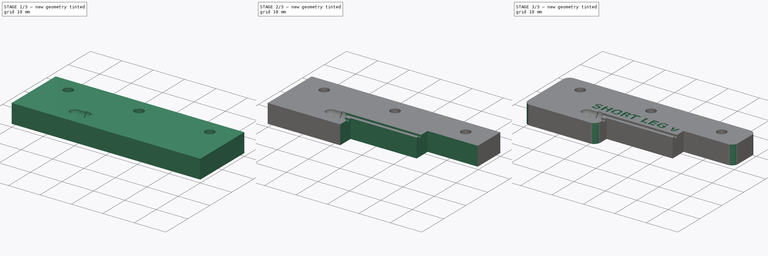
[diagram: build sequence overview — one tinted view per stage of 3, left to right]
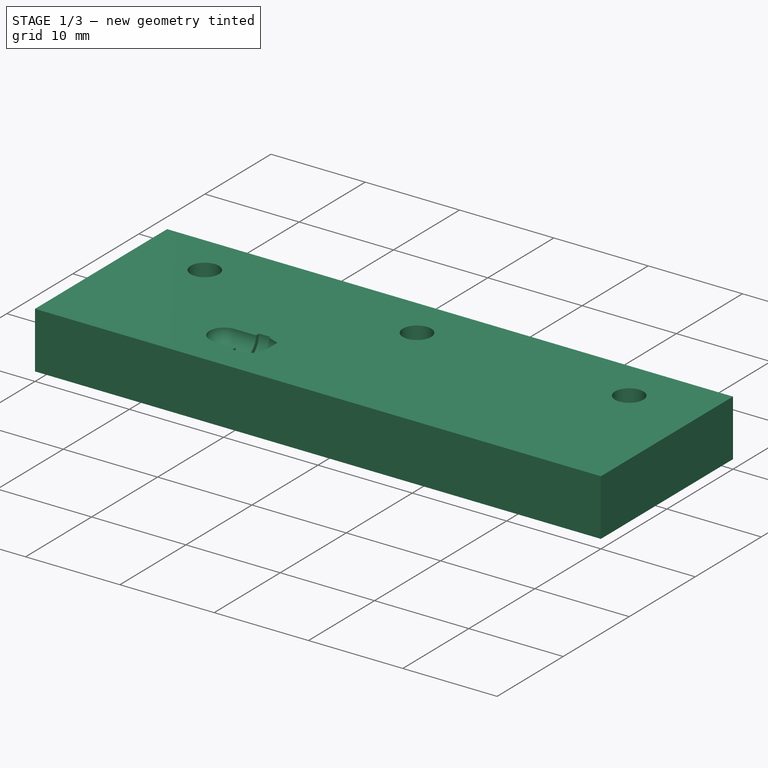
[diagram: stage 1 of 3 — iso view after this stage's code; geometry added in this stage tinted green]
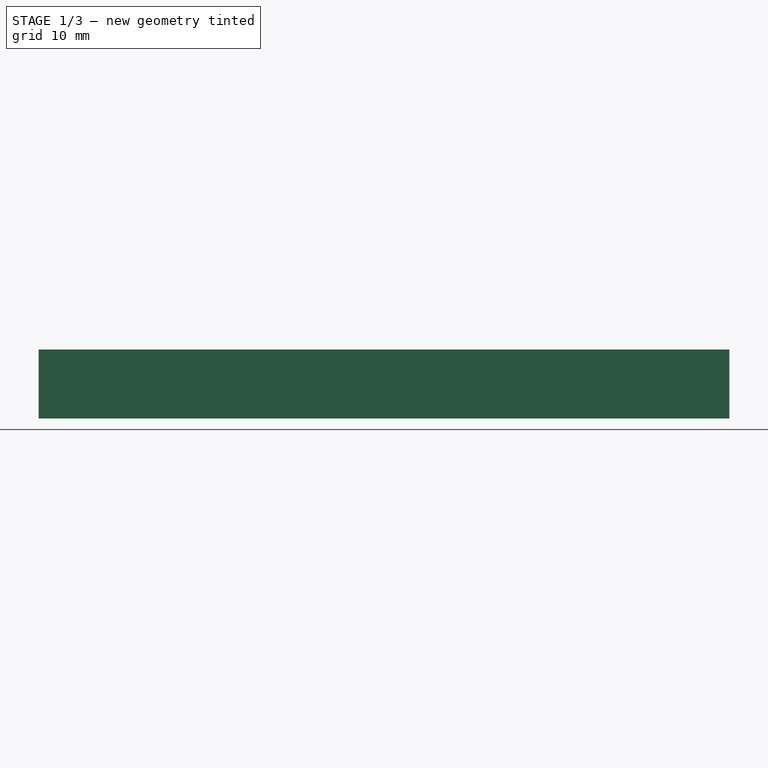
[diagram: stage 1 of 3 — front view after this stage's code; geometry added in this stage tinted green]
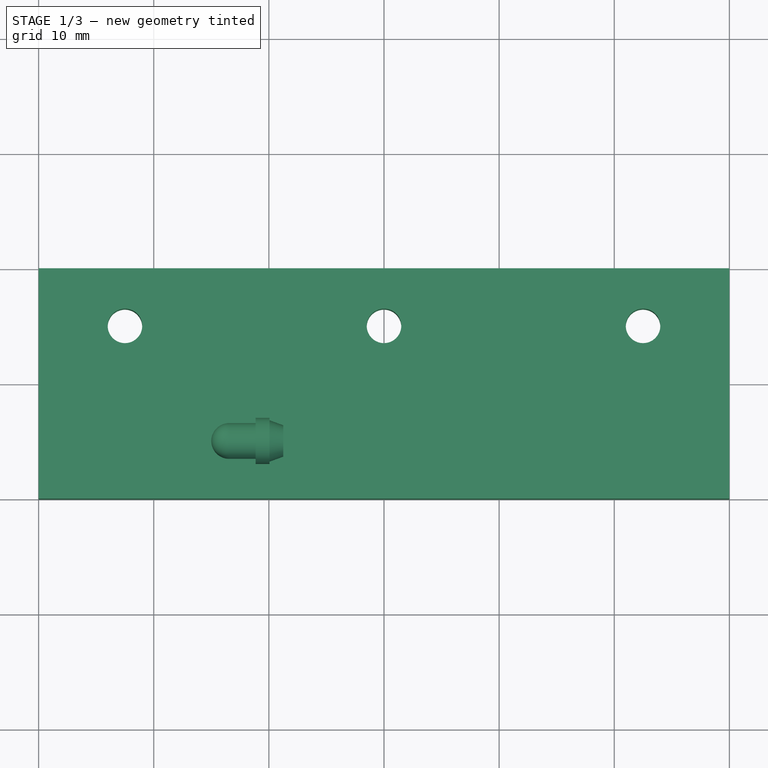
[diagram: stage 1 of 3 — top view after this stage's code; geometry added in this stage tinted green]
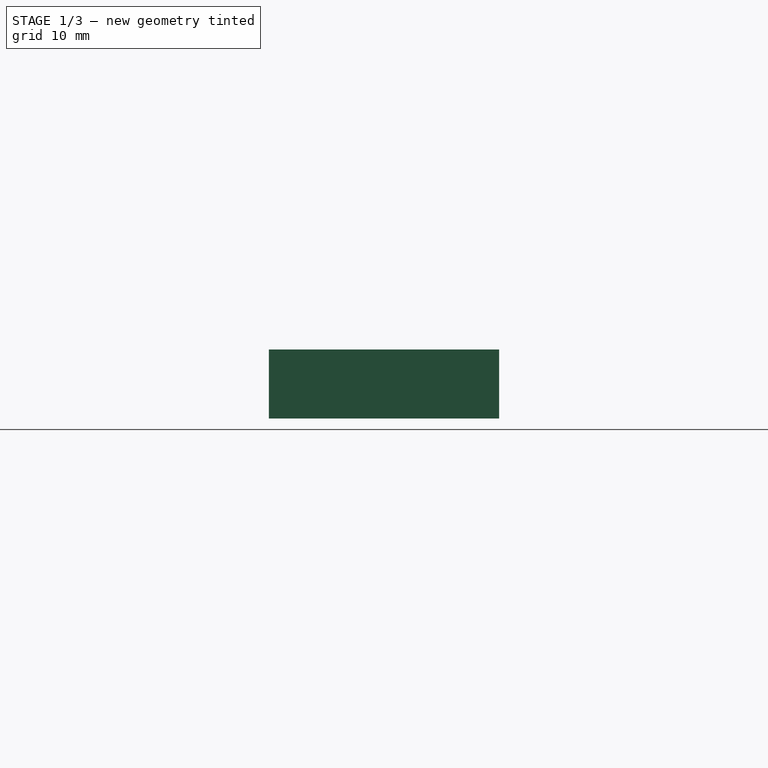
[diagram: stage 1 of 3 — right view after this stage's code; geometry added in this stage tinted green]
FCSTD DOCUMENT  (FreeCAD 1.1R20260414 (Git shallow))
Label: led-jig
License: All rights reserved
LicenseURL: https://en.wikipedia.org/wiki/All_rights_reserved
objects: Sketcher::SketchObject×5, PartDesign::Pocket×3, App::Point×1, PartDesign::Pad×1, PartDesign::Groove×1, Part::Part2DObjectPython×1, PartDesign::Fillet×1, PartDesign::Body×1
note: 30 computed .brp shape members not serialized (recipe doc carries the construction recipe); baked Part::Feature solids carry a one-line shape summary decoded from their .brp

FEATURE [App::Point] Origin001
  Role = Origin
FEATURE [Sketcher::SketchObject] Sketch
  ArcFitTolerance = 1e-06
  AttachmentSupport = -> [Origin]
  ExternalTypes = [0]
  FullyConstrained = true
  MakeInternals = false
  MapMode = 5
  _ExternalGeoVersion = 1
  sketch-geometry (7):
    g0: LineSegment StartX=0 StartY=0 StartZ=0 EndX=60 EndY=0 EndZ=0
    g1: LineSegment StartX=60 StartY=0 StartZ=0 EndX=60 EndY=20 EndZ=0
    g2: LineSegment StartX=60 StartY=20 StartZ=0 EndX=0 EndY=20 EndZ=0
    g3: LineSegment StartX=0 StartY=20 StartZ=0 EndX=0 EndY=0 EndZ=0
    g4: Circle CenterX=52.5 CenterY=15 CenterZ=0 NormalX=0 NormalY=0 NormalZ=1 AngleXU=0 Radius=1.5
    g5: Circle CenterX=30 CenterY=15 CenterZ=0 NormalX=0 NormalY=0 NormalZ=1 AngleXU=0 Radius=1.5
    g6: Circle CenterX=7.5 CenterY=15 CenterZ=0 NormalX=0 NormalY=0 NormalZ=1 AngleXU=0 Radius=1.5
  constraints (20):
    c: Coincident(g0,g1)
    c: Coincident(g1,g2)
    c: Coincident(g2,g3)
    c: Coincident(g3,g0)
    c: Horizontal(g0)
    c: Horizontal(g2)
    c: Vertical(g1)
    c: Vertical(g3)
    c: Distance(g1,g3) = 60
    c: Distance(g0,g2) = 20
    c: Coincident(g0,g-1)
    c: Diameter(g4) = 3
    c: DistanceX(g6,g5) = 22.5
    c: DistanceX(g5,g4) = 22.5
    c: DistanceX(g2,g6) = 7.5
    c: DistanceY(g6,g2) = 5
    c: Horizontal(g6,g5)
    c: Horizontal(g6,g4)
    c: Equal(g6,g5)
    c: Equal(g5,g4)
FEATURE [PartDesign::Pad] Pad
  Direction = (0,0,1)
  Length = 6
  Length2 = 10
  Profile = -> Sketch
  ReferenceAxis = -> Sketch [N_Axis]
  Refine = true
  SideType = 0
  Suppressed = false
  Type = 0
  Type2 = 0
FEATURE [Sketcher::SketchObject] Sketch001
  ArcFitTolerance = 1e-06
  AttachmentSupport = -> [Pad]
  ExternalTypes = [0]
  FullyConstrained = false
  MakeInternals = false
  MapMode = 5
  Placement = pos=(0,0,6) rot=(0,0,1;0rad)
  _ExternalGeoVersion = 1
  sketch-geometry (9):
    g0: LineSegment [constr] StartX=15 StartY=5 StartZ=0 EndX=24.2807 EndY=5 EndZ=0
    g1: ArcOfCircle CenterX=16.55 CenterY=5 CenterZ=0 NormalX=0 NormalY=0 NormalZ=1 AngleXU=0 Radius=1.55 StartAngle=1.5708 EndAngle=3.14159
    g2: LineSegment StartX=16.55 StartY=6.55 StartZ=0 EndX=18.85 EndY=6.55 EndZ=0
    g3: LineSegment StartX=18.85 StartY=6.55 StartZ=0 EndX=18.85 EndY=7 EndZ=0
    g4: LineSegment StartX=18.85 StartY=7 StartZ=0 EndX=20.05 EndY=7 EndZ=0
    g5: LineSegment StartX=15 StartY=5 StartZ=0 EndX=21.25 EndY=5 EndZ=0
    g6: LineSegment StartX=20.05 StartY=7 StartZ=0 EndX=20.05 EndY=6.8 EndZ=0
    g7: LineSegment StartX=21.25 StartY=6.36324 StartZ=0 EndX=21.25 EndY=5 EndZ=0
    g8: LineSegment StartX=20.05 StartY=6.8 StartZ=0 EndX=21.25 EndY=6.36324 EndZ=0
  constraints (27):
    c: Horizontal(g0)
    c: PointOnObject(g1,g0)
    c: Vertical(g1,g1)
    c: Radius(g1) = 1.55
    c: Distance(g2) = 2.3
    c: Coincident(g2,g1)
    c: Horizontal(g2)
    c: Coincident(g3,g2)
    c: Vertical(g3)
    c: Coincident(g4,g3)
    c: Horizontal(g4)
    c: Coincident(g5,g1)
    c: DistanceX(g4,g4) = 1.2
    c: Coincident(g0,g1)
    c: DistanceX(g-1,g0) = 15
    c: DistanceY(g-1,g0) = 5
    c: PointOnObject(g5,g0)
    c: DistanceY(g5,g3) = 2
    c: Coincident(g6,g4)
    c: Vertical(g6)
    c: DistanceY(g6,g6) = 0.2
    c: Coincident(g7,g5)
    c: Vertical(g7)
    c: Coincident(g8,g6)
    c: Coincident(g8,g7)
    c: Angle(g8,g7) = 1.91986
    c: DistanceX(g4,g7) = 1.2
FEATURE [PartDesign::Groove] Groove
  Angle = 360
  Angle2 = 0
  Axis = (9.2807,0,0)
  Base = (15,5,6)
  BaseFeature = -> Pad
  Profile = -> Sketch001
  ReferenceAxis = -> Sketch001 [Axis]
  Refine = true
  Reversed = true
  Suppressed = false
  Type = 0
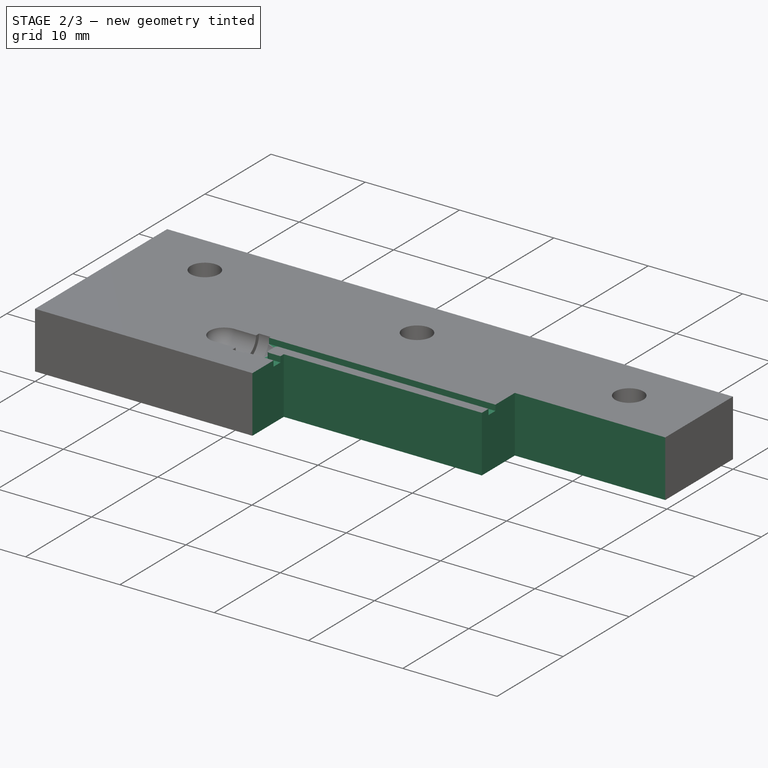
[diagram: stage 2 of 3 — iso view after this stage's code; geometry added in this stage tinted green]
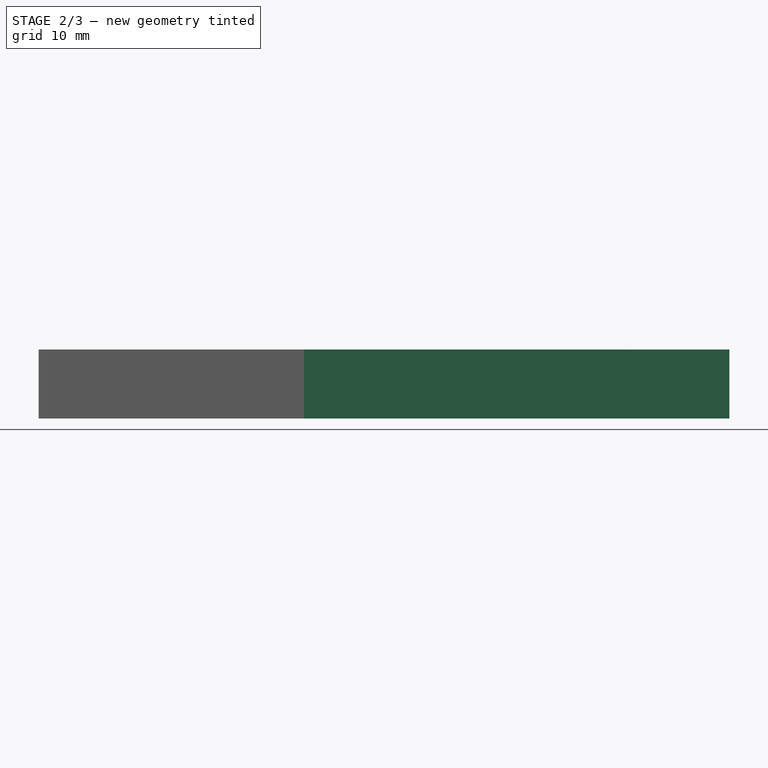
[diagram: stage 2 of 3 — front view after this stage's code; geometry added in this stage tinted green]
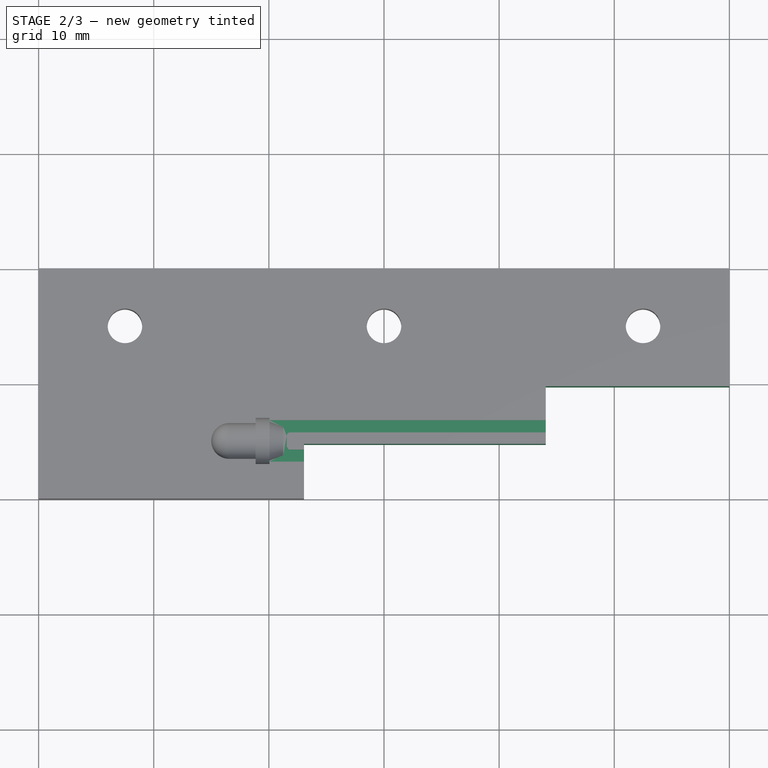
[diagram: stage 2 of 3 — top view after this stage's code; geometry added in this stage tinted green]
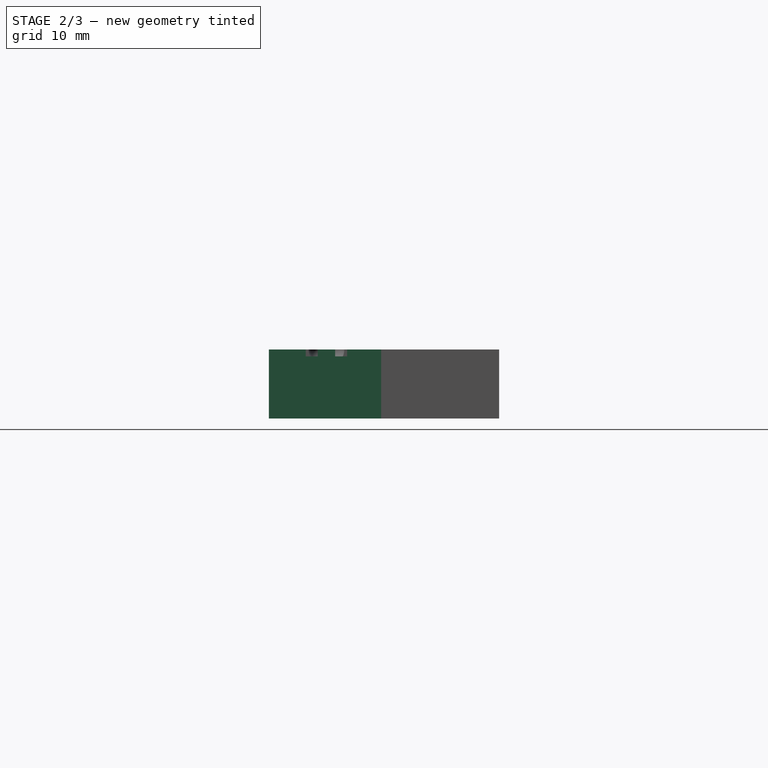
[diagram: stage 2 of 3 — right view after this stage's code; geometry added in this stage tinted green]
FEATURE [Sketcher::SketchObject] Sketch002
  ArcFitTolerance = 1e-06
  AttachmentSupport = -> [Groove]
  ExternalGeometry = -> [Groove]
  ExternalTypes = [0]
  FullyConstrained = true
  MakeInternals = false
  MapMode = 5
  Placement = pos=(0,0,6) rot=(0,0,1;0rad)
  _ExternalGeoVersion = 1
  sketch-geometry (13):
    g0: LineSegment StartX=48.05 StartY=5.75 StartZ=0 EndX=48.05 EndY=6.8 EndZ=0
    g1: LineSegment StartX=48.05 StartY=6.8 StartZ=0 EndX=20.05 EndY=6.8 EndZ=0
    g2: LineSegment StartX=20.05 StartY=6.8 StartZ=0 EndX=20.05 EndY=3.2 EndZ=0
    g3: LineSegment StartX=20.05 StartY=3.2 StartZ=0 EndX=50.05 EndY=3.2 EndZ=0
    g4: LineSegment StartX=50.05 StartY=3.2 StartZ=0 EndX=50.05 EndY=4.25 EndZ=0
    g5: LineSegment StartX=50.05 StartY=4.25 StartZ=0 EndX=21.85 EndY=4.25 EndZ=0
    g6: LineSegment StartX=21.55 StartY=4.55 StartZ=0 EndX=21.55 EndY=5.45 EndZ=0
    g7: LineSegment StartX=21.85 StartY=5.75 StartZ=0 EndX=48.05 EndY=5.75 EndZ=0
    g8: GeomPoint [constr] X=20.05 Y=5 Z=0
    g9: ArcOfCircle CenterX=21.85 CenterY=5.45 CenterZ=0 NormalX=0 NormalY=0 NormalZ=1 AngleXU=0 Radius=0.3 StartAngle=1.5708 EndAngle=3.14159
    g10: GeomPoint [constr] X=21.55 Y=5.75 Z=0
    g11: ArcOfCircle CenterX=21.85 CenterY=4.55 CenterZ=0 NormalX=0 NormalY=0 NormalZ=1 AngleXU=0 Radius=0.3 StartAngle=3.14159 EndAngle=4.71239
    g12: GeomPoint [constr] X=21.55 Y=4.25 Z=0
  constraints (32):
    c: Coincident(g0,g1)
    c: Vertical(g0)
    c: Horizontal(g1)
    c: PointOnObject(g1,g-3)
    c: Coincident(g2,g3)
    c: Coincident(g3,g4)
    c: Vertical(g4)
    c: Horizontal(g3)
    c: Coincident(g5,g4)
    c: Horizontal(g5)
    c: Vertical(g6)
    c: Coincident(g7,g0)
    c: Horizontal(g7)
    c: Coincident(g2,g1)
    c: DistanceX(g3,g3) = 30
    c: DistanceX(g1,g1) = 28
    c: DistanceX(g1,g10) = 1.5
    c: DistanceY(g12,g10) = 1.5
    c: Symmetric(g2,g2,g8)
    c: Symmetric(g-3,g-3,g8)
    c: Equal(g0,g4)
    c: DistanceY(g2,g2) = 3.6
    c: PointOnObject(g10,g6)
    c: PointOnObject(g10,g7)
    c: Tangent(g6,g9) = 1.5708
    c: Tangent(g7,g9) = 1.5708
    c: PointOnObject(g12,g5)
    c: PointOnObject(g12,g6)
    c: Tangent(g5,g11) = 1.5708
    c: Tangent(g6,g11) = 1.5708
    c: Radius(g11) = 0.3
    c: Radius(g9) = 0.3
FEATURE [PartDesign::Pocket] Pocket
  BaseFeature = -> Groove
  Direction = (0,0,-1)
  Length = 0.6
  Length2 = 5
  Profile = -> Sketch002
  ReferenceAxis = -> Sketch002 [N_Axis]
  Refine = true
  SideType = 0
  Suppressed = false
  Type = 0
  Type2 = 0
FEATURE [Sketcher::SketchObject] Sketch003
  ArcFitTolerance = 1e-06
  AttachmentSupport = -> [Pocket]
  ExternalGeometry = -> [Pocket]
  ExternalTypes = [0,0,0]
  FullyConstrained = true
  MakeInternals = false
  MapMode = 5
  Placement = pos=(0,0,6) rot=(0,0,1;0rad)
  _ExternalGeoVersion = 1
  sketch-geometry (6):
    g0: LineSegment StartX=23.05 StartY=0 StartZ=0 EndX=23.05 EndY=4.75 EndZ=0
    g1: LineSegment StartX=23.05 StartY=4.75 StartZ=0 EndX=44.05 EndY=4.75 EndZ=0
    g2: LineSegment StartX=44.05 StartY=4.75 StartZ=0 EndX=44.05 EndY=9.75 EndZ=0
    g3: LineSegment StartX=44.05 StartY=9.75 StartZ=0 EndX=60 EndY=9.75 EndZ=0
    g4: LineSegment StartX=60 StartY=9.75 StartZ=0 EndX=60 EndY=0 EndZ=0
    g5: LineSegment StartX=60 StartY=0 StartZ=0 EndX=23.05 EndY=0 EndZ=0
  constraints (17):
    c: PointOnObject(g0,g-1)
    c: Vertical(g0)
    c: Coincident(g1,g0)
    c: Horizontal(g1)
    c: Coincident(g2,g1)
    c: Vertical(g2)
    c: Coincident(g3,g2)
    c: PointOnObject(g3,g-3)
    c: Horizontal(g3)
    c: Coincident(g4,g3)
    c: Coincident(g4,g-3)
    c: Coincident(g5,g4)
    c: Coincident(g5,g0)
    c: DistanceX(g-4,g0) = 3
    c: DistanceX(g2,g-5) = 4
    c: DistanceY(g1,g-5) = 1
    c: DistanceY(g1,g2) = 5
FEATURE [PartDesign::Pocket] Pocket001
  BaseFeature = -> Pocket
  Direction = (0,0,-1)
  Length = 20
  Length2 = 5
  Profile = -> Sketch003
  ReferenceAxis = -> Sketch003 [N_Axis]
  Refine = true
  SideType = 0
  Suppressed = false
  Type = 0
  Type2 = 0
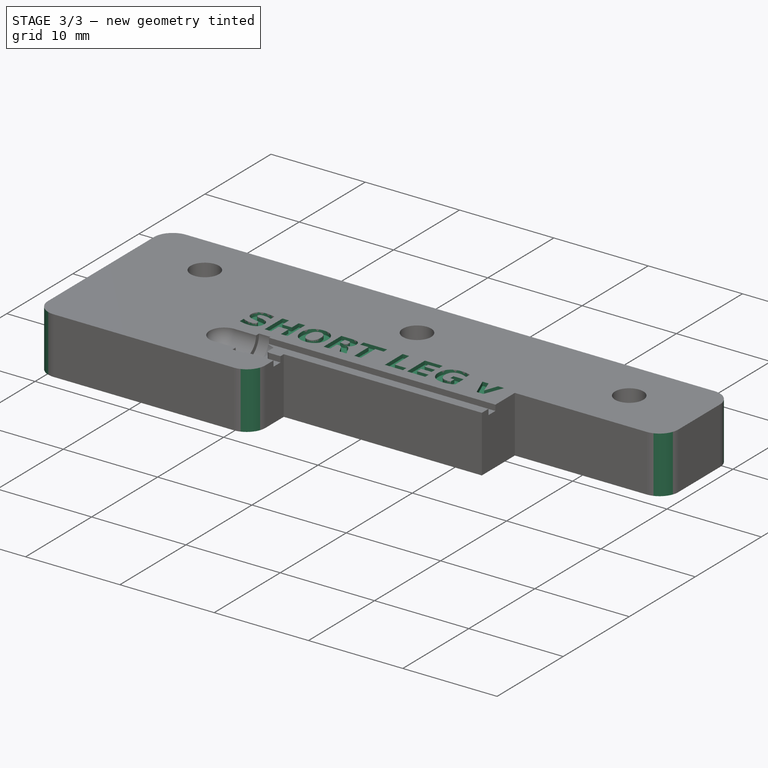
[diagram: stage 3 of 3 — iso view after this stage's code; geometry added in this stage tinted green]
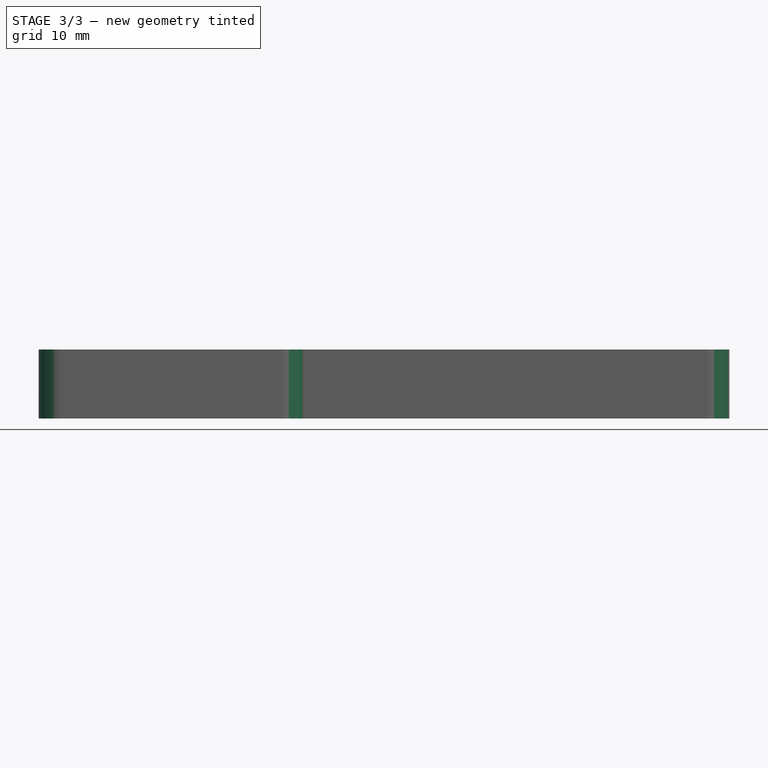
[diagram: stage 3 of 3 — front view after this stage's code; geometry added in this stage tinted green]
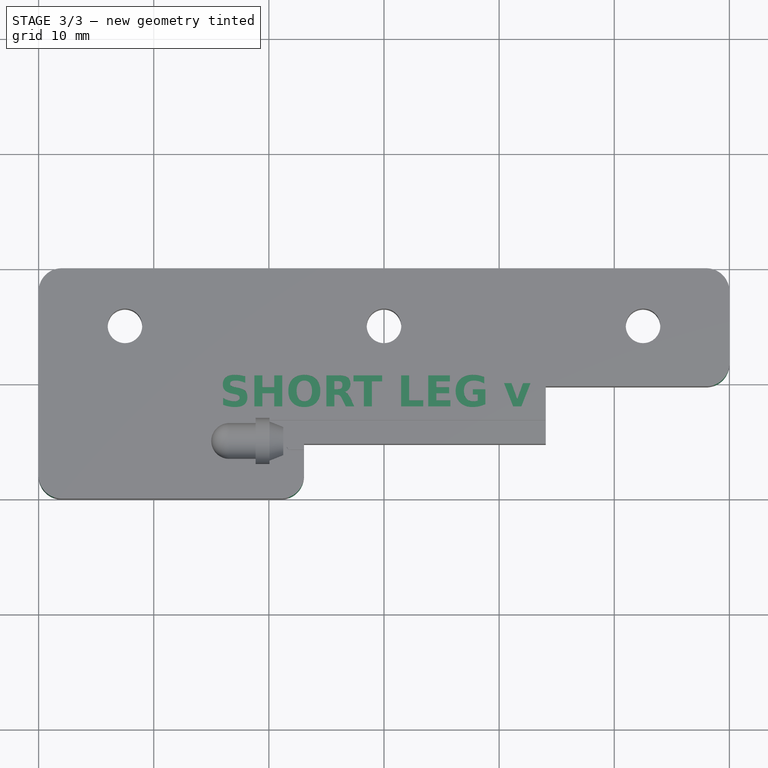
[diagram: stage 3 of 3 — top view after this stage's code; geometry added in this stage tinted green]
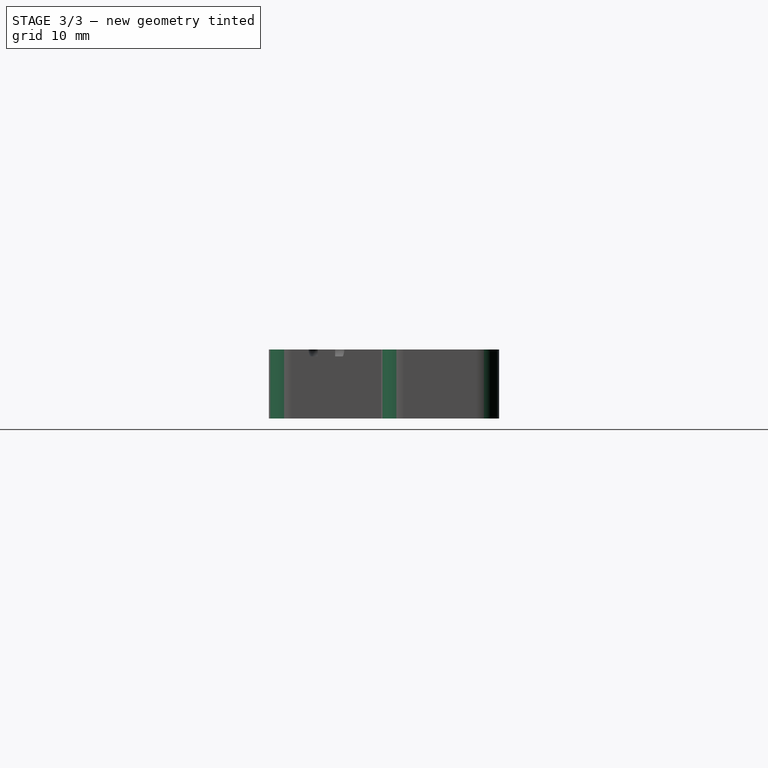
[diagram: stage 3 of 3 — right view after this stage's code; geometry added in this stage tinted green]
FEATURE [Sketcher::SketchObject] Sketch004
  ArcFitTolerance = 1e-06
  AttachmentSupport = -> [Pocket001]
  ExternalTypes = [0]
  FullyConstrained = true
  MakeInternals = false
  MapMode = 5
  Placement = pos=(0,0,6) rot=(0,0,1;0rad)
  _ExternalGeoVersion = 1
FEATURE [Part::Part2DObjectPython] ShapeString  label="ShapeString001"  # Draft 2D object (typed FeaturePython)
  FontFile = <path>
  Fuse = true
  Justification = 6
  JustificationReference = 0
  KeepLeftMargin = false
  MakeFace = true
  ObliqueAngle = 0
  Placement = pos=(16,8,6) rot=(0,0,1;0rad)
  ScaleToSize = true
  Size = 2.7
  String = SHORT LEG v
  Tracking = 0
FEATURE [PartDesign::Pocket] Pocket002
  BaseFeature = -> Pocket001
  Direction = (0,0,-1)
  Length = 0.4
  Length2 = 5
  Profile = -> ShapeString
  ReferenceAxis = -> ShapeString [N_Axis]
  Refine = true
  SideType = 0
  Suppressed = false
  Type = 0
  Type2 = 0
FEATURE [PartDesign::Fillet] Fillet
  Base = -> Pocket002 [Edge4,Edge160,Edge161,Edge162,Edge2]
  BaseFeature = -> Pocket002
  Radius = 2
  Refine = true
  SupportTransform = false
  Suppressed = false
  UseAllEdges = false
FEATURE [PartDesign::Body] Body
  AllowCompound = false
  Group = -> [Sketch,Pad,Sketch001,Groove,Sketch002,Pocket,Sketch003,Pocket001,Sketch004,ShapeString,Pocket002,Fillet]
  Origin = -> Origin
  Tip = -> Fillet
note: 1 file-system path scrubbed to <path> (originals preserved in the JSON sidecar)
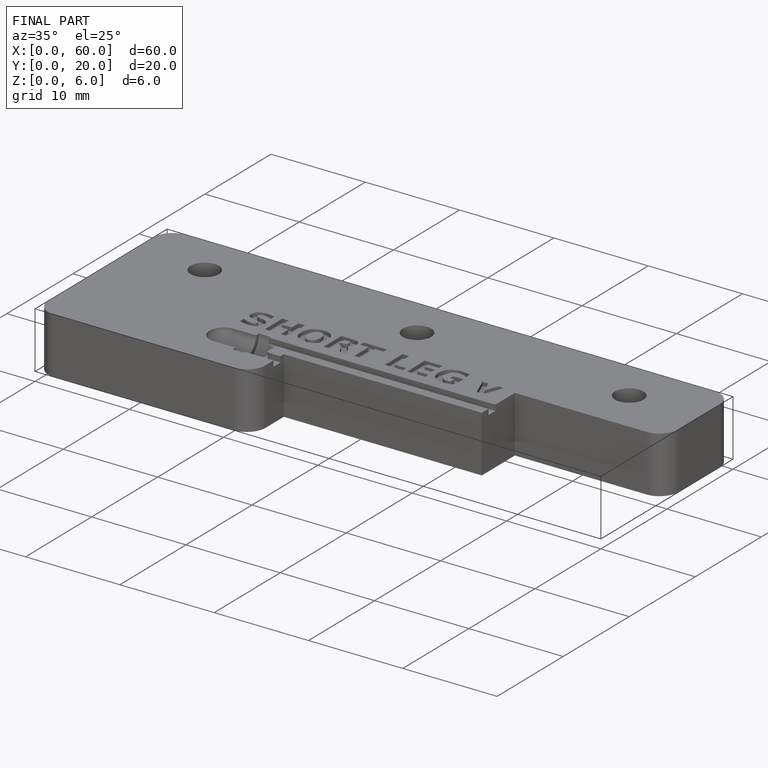
[diagram: finished part — iso view with bounding-box wireframe]
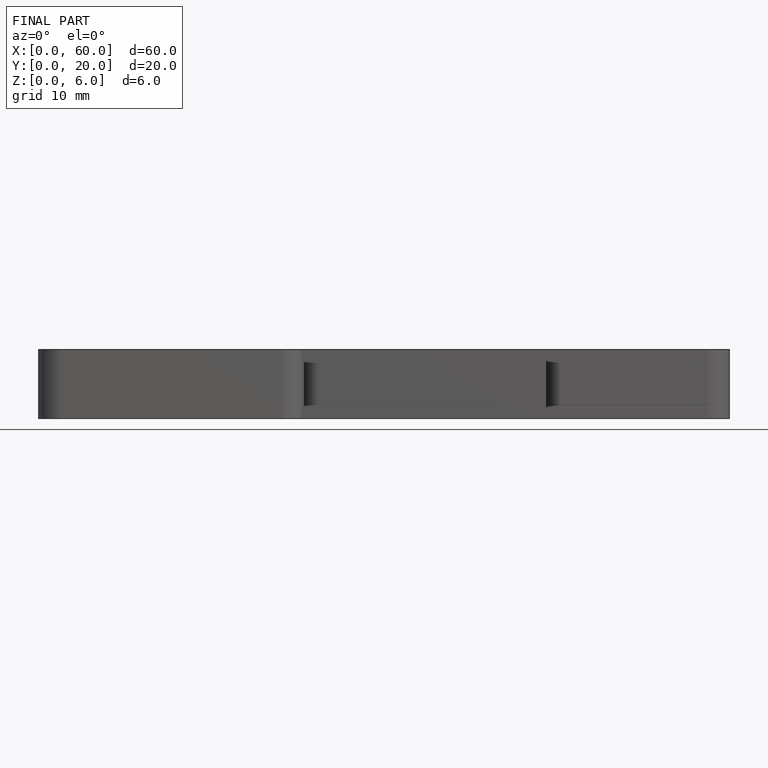
[diagram: finished part — front view with bounding-box wireframe]
